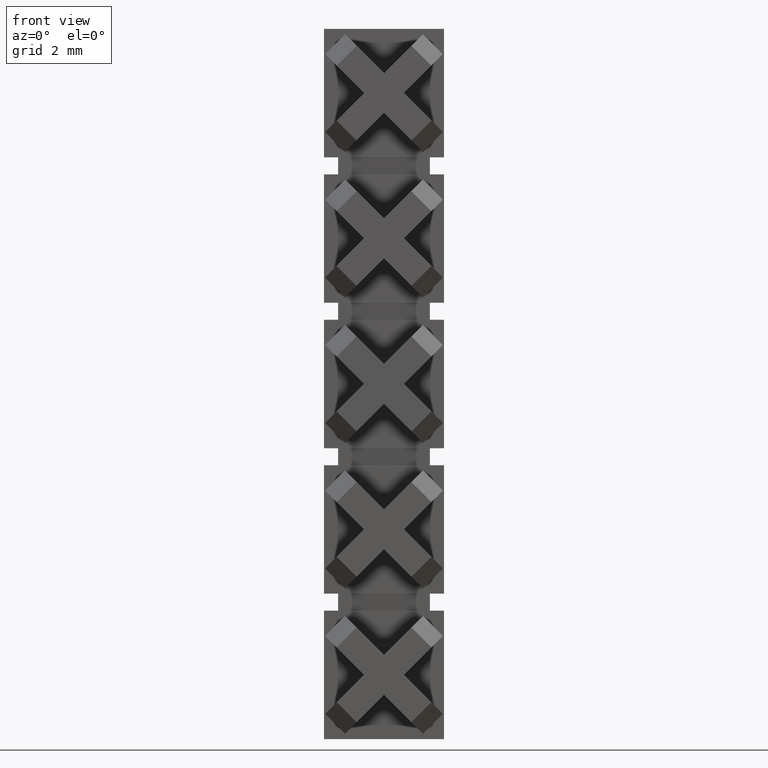
[diagram: clean part render]
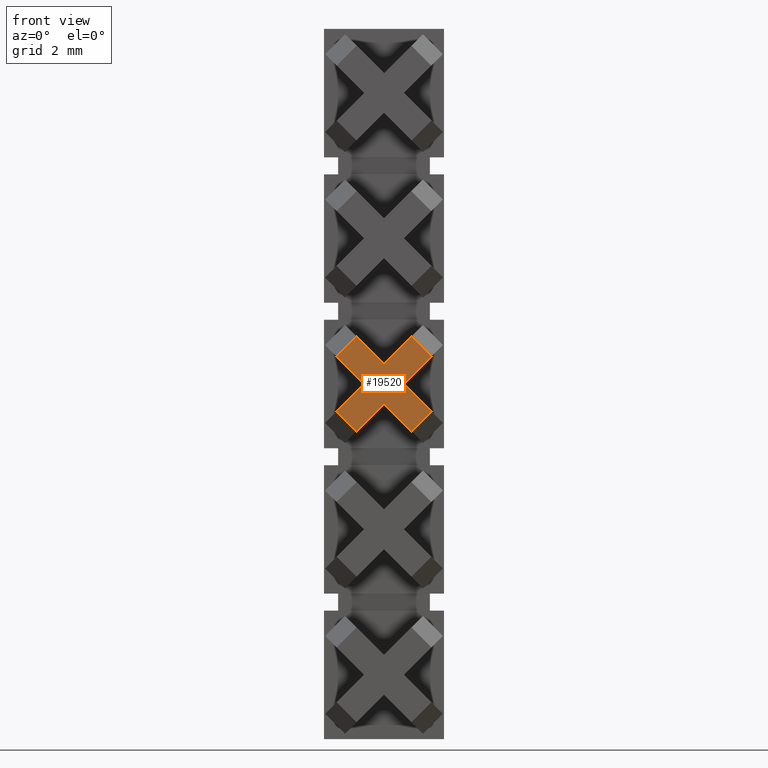
[diagram: same view with one face highlighted and labeled with its STEP entity id]
A machine part, front view. The second image highlights one B-rep face of the part: STEP entity #19520.
In plain terms, the highlighted planar face has unit normal (-0, 1, 0).
Its self-contained STEP definition (entity closure, byte-faithful):
#670=CARTESIAN_POINT('',(13.7500605553508,-12.6500000000047,61.37));
#680=VERTEX_POINT('',#670);
#710=CARTESIAN_POINT('',(6.05006055535074,-12.6500000000055,53.67));
#720=DIRECTION('',(-0.707106781186547,-8.16569034611803E-14,
-0.707106781186548));
#730=VECTOR('',#720,1.);
#740=LINE('',#710,#730);
#750=CARTESIAN_POINT('',(12.7794506225008,-12.6500000000048,
60.3993900671501));
#760=VERTEX_POINT('',#750);
#770=EDGE_CURVE('',#680,#760,#740,.T.);
#2100=CARTESIAN_POINT('',(21.4500605553507,-12.6500000000038,53.67));
#2110=DIRECTION('',(0.707106781186546,8.16291478855646E-14,
-0.707106781186549));
#2120=VECTOR('',#2110,1.);
#2130=LINE('',#2100,#2120);
#2140=CARTESIAN_POINT('',(12.7794506225008,-12.6500000000048,
62.3406099328499));
#2150=VERTEX_POINT('',#2140);
#2160=EDGE_CURVE('',#2150,#680,#2130,.T.);
#3170=CARTESIAN_POINT('',(14.4571673365373,-12.6500000000046,
62.0771067811865));
#3180=VERTEX_POINT('',#3170);
#3210=CARTESIAN_POINT('',(22.8642741177239,-12.6500000000036,53.67));
#3220=DIRECTION('',(-0.707106781186548,-8.16569034611803E-14,
0.707106781186548));
#3230=VECTOR('',#3220,1.);
#3240=LINE('',#3210,#3230);
#3250=CARTESIAN_POINT('',(13.4865574036874,-12.6500000000047,
63.0477167140364));
#3260=VERTEX_POINT('',#3250);
#3270=EDGE_CURVE('',#3180,#3260,#3240,.T.);
#5470=CARTESIAN_POINT('',(14.4571673365373,-12.6500000000046,
60.6628932188134));
#5480=VERTEX_POINT('',#5470);
#5510=CARTESIAN_POINT('',(21.4500605553508,-12.6500000000038,53.67));
#5520=DIRECTION('',(0.707106781186547,8.16569034611803E-14,
-0.707106781186548));
#5530=VECTOR('',#5520,1.);
#5540=LINE('',#5510,#5530);
#5550=CARTESIAN_POINT('',(15.4277772693872,-12.6500000000045,
59.6922832859635));
#5560=VERTEX_POINT('',#5550);
#5570=EDGE_CURVE('',#5480,#5560,#5540,.T.);
#15420=CARTESIAN_POINT('',(6.05006055535073,-12.6500000000055,53.67));
#15430=DIRECTION('',(-0.707106781186548,-8.16569034611803E-14,
-0.707106781186548));
#15440=VECTOR('',#15430,1.);
#15450=LINE('',#15420,#15440);
#15460=CARTESIAN_POINT('',(15.4277772693872,-12.6500000000045,
63.0477167140365));
#15470=VERTEX_POINT('',#15460);
#15480=EDGE_CURVE('',#15470,#3180,#15450,.T.);
#17580=CARTESIAN_POINT('',(7.46427411772383,-12.6500000000054,53.67));
#17590=DIRECTION('',(0.707106781186547,8.16569034611803E-14,
0.707106781186548));
#17600=VECTOR('',#17590,1.);
#17610=LINE('',#17580,#17600);
#17620=CARTESIAN_POINT('',(13.4865574036874,-12.6500000000047,
59.6922832859635));
#17630=VERTEX_POINT('',#17620);
#17640=EDGE_CURVE('',#17630,#5480,#17610,.T.);
#18970=CARTESIAN_POINT('',(11.8898260000004,-12.6500000000049,28.694697)
);
#18980=DIRECTION('',(-1.15463194561016E-13,1.,0.));
#18990=DIRECTION('',(-1.,-1.15463194561016E-13,0.));
#19000=AXIS2_PLACEMENT_3D('',#18970,#18980,#18990);
#19010=PLANE('',#19000);
#19020=CARTESIAN_POINT('',(7.46427411772383,-12.6500000000054,53.67));
#19030=DIRECTION('',(0.707106781186547,8.16569034611803E-14,
0.707106781186548));
#19040=VECTOR('',#19030,1.);
#19050=LINE('',#19020,#19040);
#19060=CARTESIAN_POINT('',(15.1642741177238,-12.6500000000045,61.37));
#19070=VERTEX_POINT('',#19060);
#19080=CARTESIAN_POINT('',(16.1348840505737,-12.6500000000044,
62.3406099328499));
#19090=VERTEX_POINT('',#19080);
#19100=EDGE_CURVE('',#19070,#19090,#19050,.T.);
#19110=ORIENTED_EDGE('',*,*,#19100,.T.);
#19120=CARTESIAN_POINT('',(22.8642741177239,-12.6500000000036,53.67));
#19130=DIRECTION('',(-0.707106781186547,-8.16291478855646E-14,
0.707106781186548));
#19140=VECTOR('',#19130,1.);
#19150=LINE('',#19120,#19140);
#19160=CARTESIAN_POINT('',(16.1348840505738,-12.6500000000044,
60.3993900671501));
#19170=VERTEX_POINT('',#19160);
#19180=EDGE_CURVE('',#19170,#19070,#19150,.T.);
#19190=ORIENTED_EDGE('',*,*,#19180,.T.);
#19200=CARTESIAN_POINT('',(9.40549398342364,-12.6500000000052,53.67));
#19210=DIRECTION('',(0.707106781186547,8.16297660369823E-14,
0.707106781186548));
#19220=VECTOR('',#19210,1.);
#19230=LINE('',#19200,#19220);
#19240=EDGE_CURVE('',#5560,#19170,#19230,.T.);
#19250=ORIENTED_EDGE('',*,*,#19240,.T.);
#19260=ORIENTED_EDGE('',*,*,#5570,.T.);
#19270=ORIENTED_EDGE('',*,*,#17640,.T.);
#19280=CARTESIAN_POINT('',(19.508840689651,-12.650000000004,53.67));
#19290=DIRECTION('',(0.707106781186548,8.16297660369823E-14,
-0.707106781186548));
#19300=VECTOR('',#19290,1.);
#19310=LINE('',#19280,#19300);
#19320=EDGE_CURVE('',#760,#17630,#19310,.T.);
#19330=ORIENTED_EDGE('',*,*,#19320,.T.);
#19340=ORIENTED_EDGE('',*,*,#770,.T.);
#19350=ORIENTED_EDGE('',*,*,#2160,.T.);
#19360=CARTESIAN_POINT('',(14.1484164161272,-12.6500000000046,
63.7095757264762));
#19370=DIRECTION('',(-0.707106781186548,-8.16618154150887E-14,
-0.707106781186547));
#19380=VECTOR('',#19370,1.);
#19390=LINE('',#19360,#19380);
#19400=EDGE_CURVE('',#3260,#2150,#19390,.T.);
#19410=ORIENTED_EDGE('',*,*,#19400,.T.);
#19420=ORIENTED_EDGE('',*,*,#3270,.T.);
#19430=ORIENTED_EDGE('',*,*,#15480,.T.);
#19440=CARTESIAN_POINT('',(24.8054939834237,-12.6500000000034,53.67));
#19450=DIRECTION('',(-0.707106781186547,-8.16618154150887E-14,
0.707106781186548));
#19460=VECTOR('',#19450,1.);
#19470=LINE('',#19440,#19460);
#19480=EDGE_CURVE('',#19090,#15470,#19470,.T.);
#19490=ORIENTED_EDGE('',*,*,#19480,.T.);
#19500=EDGE_LOOP('',(#19490,#19430,#19420,#19410,#19350,#19340,#19330,
#19270,#19260,#19250,#19190,#19110));
#19510=FACE_OUTER_BOUND('',#19500,.T.);
#19520=ADVANCED_FACE('',(#19510),#19010,.F.);